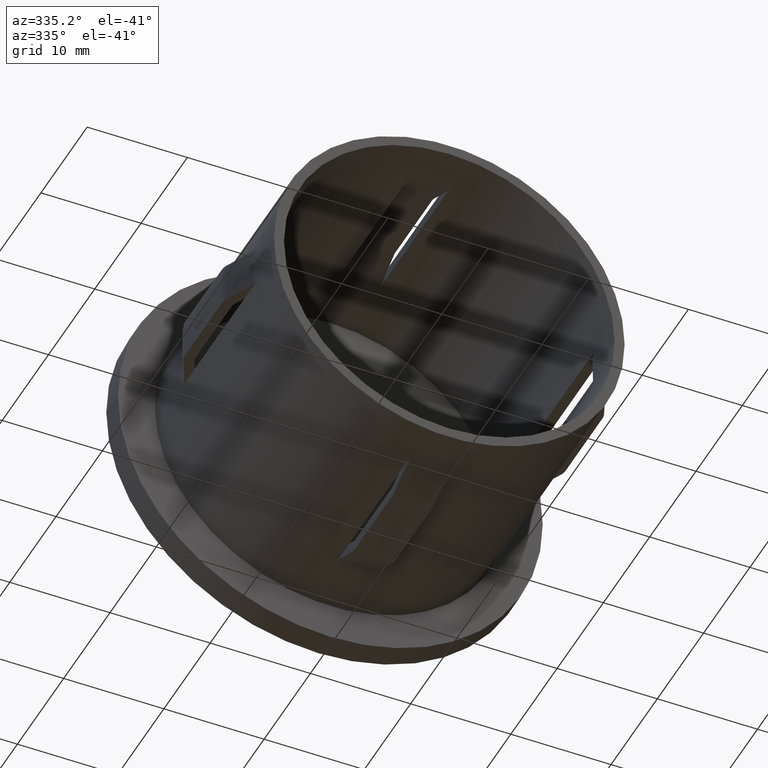
[diagram: clean part render]
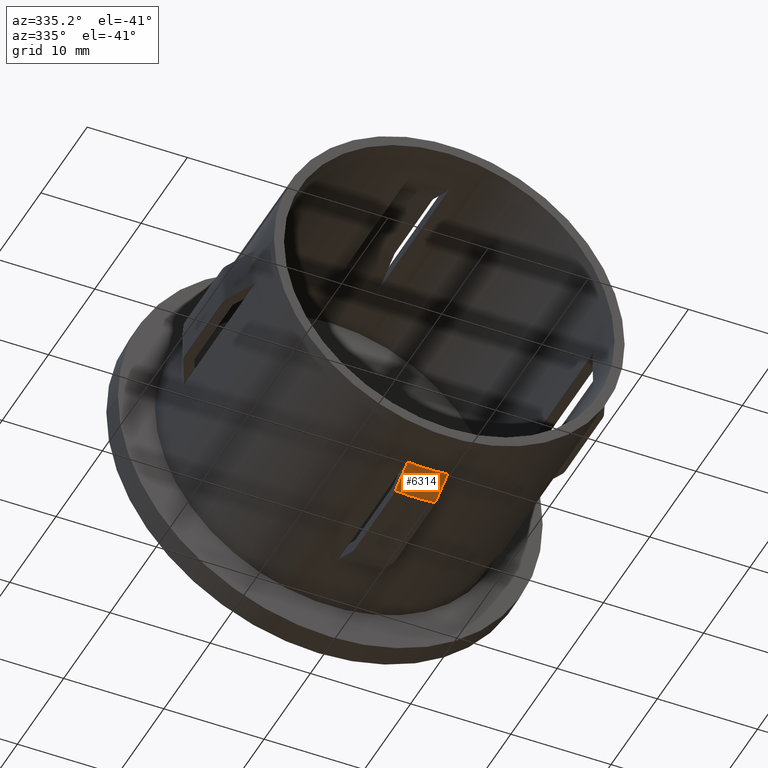
[diagram: same view with one face highlighted and labeled with its STEP entity id]
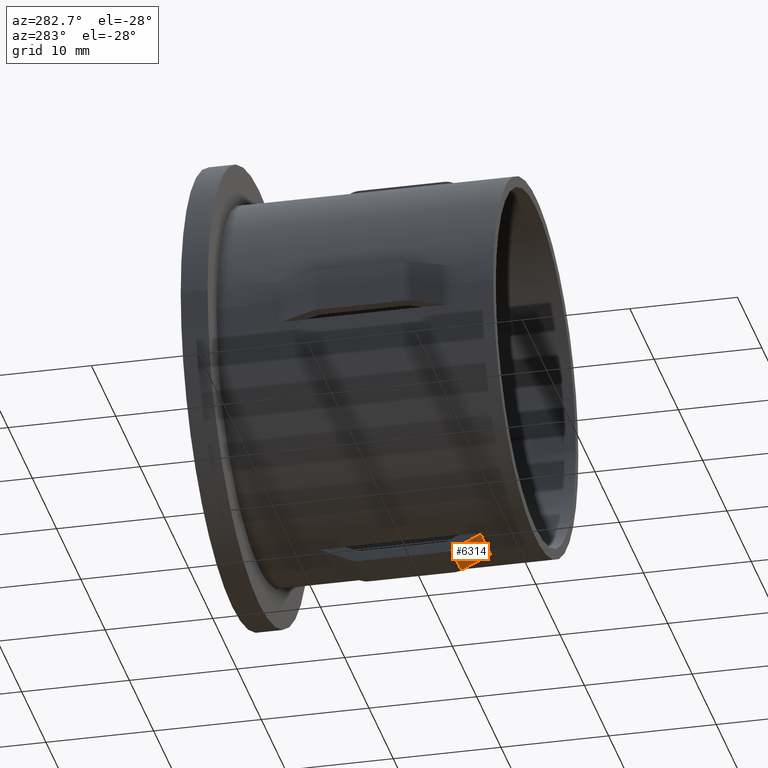
[diagram: same view with one face highlighted and labeled with its STEP entity id]
A machine part, auxiliary view. The second image highlights one B-rep face of the part: STEP entity #6314.
A second angle (auxiliary view) of the same face is appended — the face is thin or edge-on in the first view.
In plain terms, the highlighted conical surface has half-angle 25.774 deg.
Its self-contained STEP definition (entity closure, byte-faithful):
#69 = EDGE_CURVE ( 'NONE', #730, #5472, #2000, .T. ) ;
#392 = CIRCLE ( 'NONE', #13771, 18.95077702987276800 ) ;
#730 = VERTEX_POINT ( 'NONE', #10229 ) ;
#806 = CARTESIAN_POINT ( 'NONE',  ( 2.000000000000004400, 5.465650243735934700, -17.93080500426391000 ) ) ;
#1699 = VERTEX_POINT ( 'NONE', #12425 ) ;
#2000 = B_SPLINE_CURVE_WITH_KNOTS ( 'NONE', 3,
 ( #11808, #12964, #10721, #13131, #806, #9296, #9342 ),
 .UNSPECIFIED., .F., .F.,
 ( 4, 3, 4 ),
 ( 0.004474907015536900900, 0.006115095227973749300, 0.007471656069158986000 ),
 .UNSPECIFIED. ) ;
#2283 = CARTESIAN_POINT ( 'NONE',  ( 2.000000000000004400, 4.652228039544531200, -17.53553738695415000 ) ) ;
#2555 = FACE_OUTER_BOUND ( 'NONE', #13914, .T. ) ;
#3167 = ORIENTED_EDGE ( 'NONE', *, *, #9211, .F. ) ;
#3935 = ORIENTED_EDGE ( 'NONE', *, *, #14408, .F. ) ;
#4054 = EDGE_CURVE ( 'NONE', #5472, #8687, #7692, .T. ) ;
#4400 = DIRECTION ( 'NONE',  ( -1.000000000000000000, -1.474334149650358000E-016, 0.0000000000000000000 ) ) ;
#5164 = CARTESIAN_POINT ( 'NONE',  ( 3.792349138349837400E-015, 4.652228039544528600, 0.0000000000000000000 ) ) ;
#5472 = VERTEX_POINT ( 'NONE', #2283 ) ;
#5751 = CARTESIAN_POINT ( 'NONE',  ( -1.999999999999996700, 6.364159197629009100, -18.36728590477412800 ) ) ;
#5830 = DIRECTION ( 'NONE',  ( -1.000000000000000000, -1.830767649518858400E-016, 0.0000000000000000000 ) ) ;
#5857 = CARTESIAN_POINT ( 'NONE',  ( -1.999999999999996700, 5.058930714938658600, -17.73318853352355300 ) ) ;
#5861 = ORIENTED_EDGE ( 'NONE', *, *, #4054, .T. ) ;
#5934 = DIRECTION ( 'NONE',  ( -1.714505518806297100E-016, 1.000000000000000000, -0.0000000000000000000 ) ) ;
#6314 = ADVANCED_FACE ( 'NONE', ( #2555 ), #11081, .T. ) ;
#7048 = CARTESIAN_POINT ( 'NONE',  ( 3.330196645491181600E-015, 7.347771960455460800, 0.0000000000000000000 ) ) ;
#7692 = CIRCLE ( 'NONE', #13157, 17.64922297012723700 ) ;
#7947 = CARTESIAN_POINT ( 'NONE',  ( 3.792349138349837400E-015, 4.652228039544528600, 0.0000000000000000000 ) ) ;
#8082 = CARTESIAN_POINT ( 'NONE',  ( -1.999999999999996700, 4.652228039544528600, -17.53553738695415400 ) ) ;
#8687 = VERTEX_POINT ( 'NONE', #11432 ) ;
#8830 = DIRECTION ( 'NONE',  ( -1.714505518806297100E-016, 1.000000000000000000, -0.0000000000000000000 ) ) ;
#8950 = B_SPLINE_CURVE_WITH_KNOTS ( 'NONE', 3,
 ( #15387, #15342, #5751, #14124, #11931, #5857, #8082 ),
 .UNSPECIFIED., .F., .F.,
 ( 4, 3, 4 ),
 ( 0.004474907015536908800, 0.006115095227973758000, 0.007471656069158994600 ),
 .UNSPECIFIED. ) ;
#9211 = EDGE_CURVE ( 'NONE', #730, #1699, #392, .T. ) ;
#9296 = CARTESIAN_POINT ( 'NONE',  ( 2.000000000000004400, 5.058930714938660400, -17.73318853352355300 ) ) ;
#9342 = CARTESIAN_POINT ( 'NONE',  ( 2.000000000000004400, 4.652228039544531200, -17.53553738695415000 ) ) ;
#10229 = CARTESIAN_POINT ( 'NONE',  ( 2.000000000000004400, 7.347771960455461700, -18.84494494648242100 ) ) ;
#10721 = CARTESIAN_POINT ( 'NONE',  ( 2.000000000000004400, 6.364159197629009900, -18.36728590477412800 ) ) ;
#11081 = CONICAL_SURFACE ( 'NONE', #13751, 17.64922297012723700, 0.4498369306774434000 ) ;
#11432 = CARTESIAN_POINT ( 'NONE',  ( -1.999999999999996700, 4.652228039544528600, -17.53553738695415400 ) ) ;
#11673 = DIRECTION ( 'NONE',  ( -1.714505518806297100E-016, 1.000000000000000000, -0.0000000000000000000 ) ) ;
#11808 = CARTESIAN_POINT ( 'NONE',  ( 2.000000000000004400, 7.347771960455461700, -18.84494494648242100 ) ) ;
#11931 = CARTESIAN_POINT ( 'NONE',  ( -1.999999999999996700, 5.465650243735932900, -17.93080500426391000 ) ) ;
#12425 = CARTESIAN_POINT ( 'NONE',  ( -1.999999999999996200, 7.347771960455461700, -18.84494494648242100 ) ) ;
#12623 = DIRECTION ( 'NONE',  ( -1.000000000000000000, -1.474334149650358000E-016, 0.0000000000000000000 ) ) ;
#12964 = CARTESIAN_POINT ( 'NONE',  ( 2.000000000000004400, 6.855955662525881100, -18.60613585094789000 ) ) ;
#13131 = CARTESIAN_POINT ( 'NONE',  ( 2.000000000000004400, 5.872385020781268700, -18.12839008228050400 ) ) ;
#13157 = AXIS2_PLACEMENT_3D ( 'NONE', #5164, #8830, #12623 ) ;
#13410 = ORIENTED_EDGE ( 'NONE', *, *, #69, .T. ) ;
#13751 = AXIS2_PLACEMENT_3D ( 'NONE', #7947, #11673, #4400 ) ;
#13771 = AXIS2_PLACEMENT_3D ( 'NONE', #7048, #5934, #5830 ) ;
#13914 = EDGE_LOOP ( 'NONE', ( #3167, #13410, #5861, #3935 ) ) ;
#14124 = CARTESIAN_POINT ( 'NONE',  ( -1.999999999999996700, 5.872385020781267800, -18.12839008228050400 ) ) ;
#14408 = EDGE_CURVE ( 'NONE', #1699, #8687, #8950, .T. ) ;
#15342 = CARTESIAN_POINT ( 'NONE',  ( -1.999999999999996200, 6.855955662525880200, -18.60613585094789000 ) ) ;
#15387 = CARTESIAN_POINT ( 'NONE',  ( -1.999999999999996200, 7.347771960455461700, -18.84494494648242100 ) ) ;